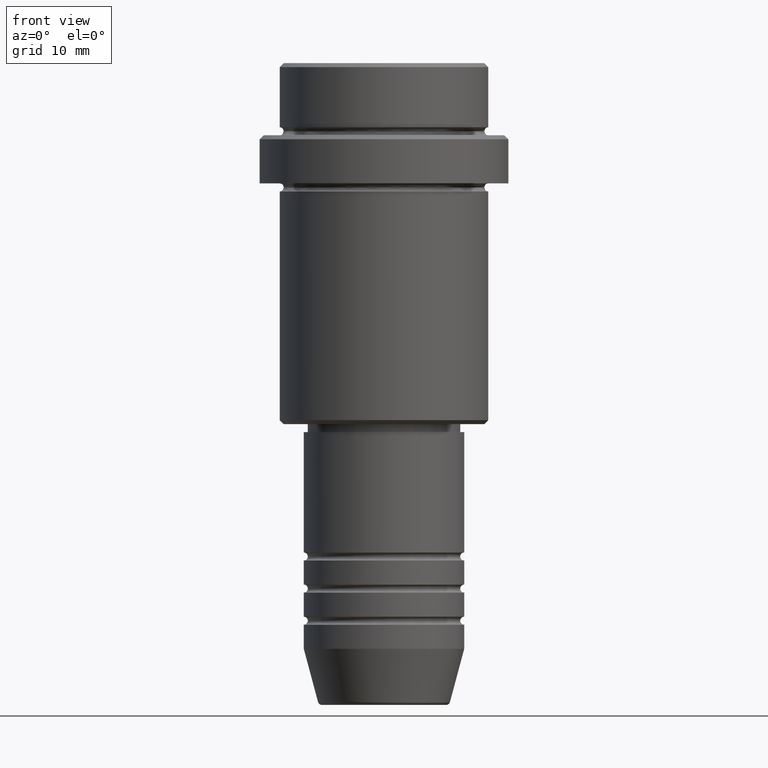
[diagram: clean part render]
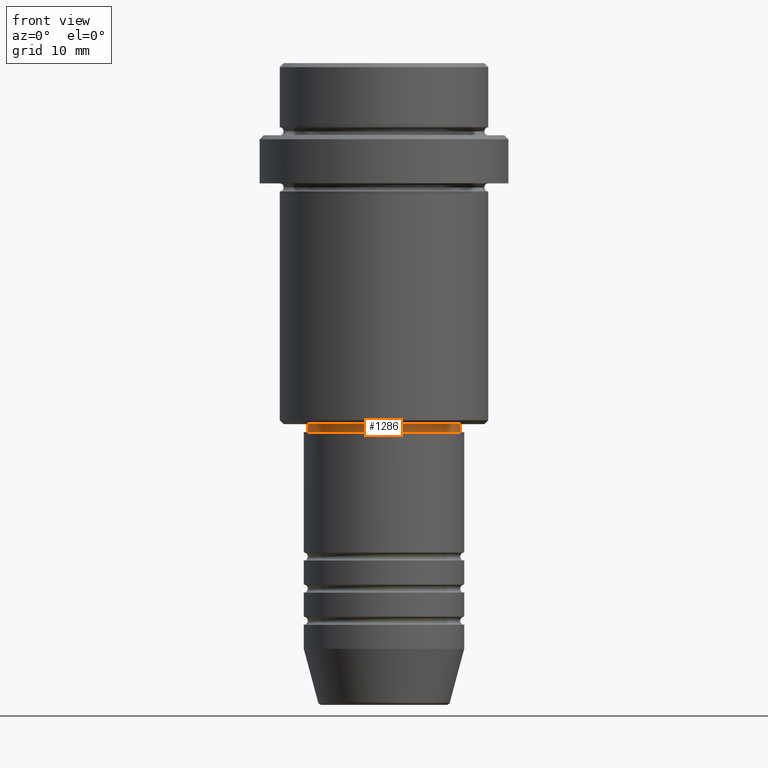
[diagram: same view with one face highlighted and labeled with its STEP entity id]
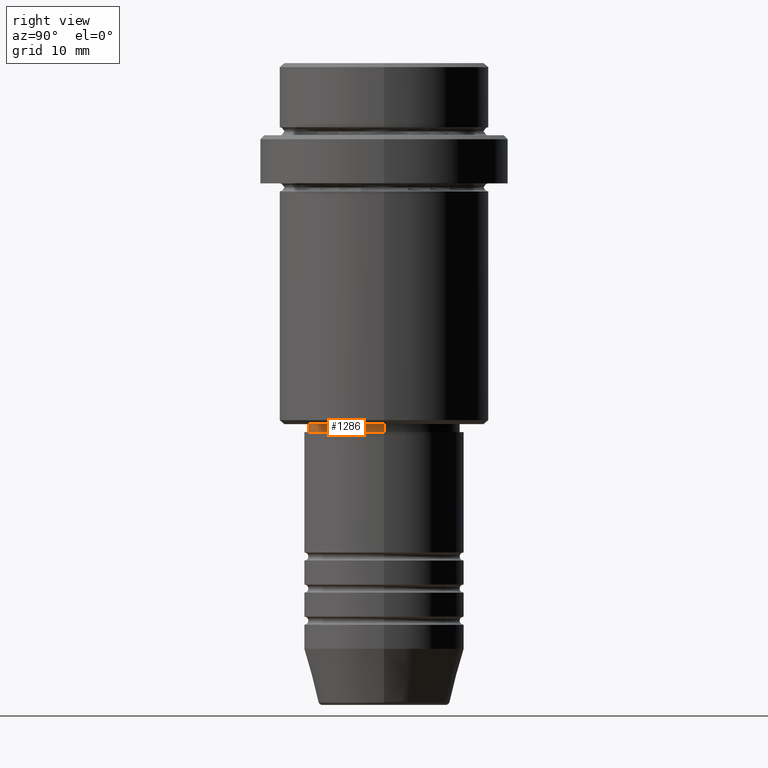
[diagram: same view with one face highlighted and labeled with its STEP entity id]
A machine part, front view. The second image highlights one B-rep face of the part: STEP entity #1286.
A second angle (right view) of the same face is appended — the face is thin or edge-on in the first view.
In plain terms, the highlighted cylindrical surface (partial cylindrical patch) has radius 9.5 mm, axis along (-0, -0, 1).
Its self-contained STEP definition (entity closure, byte-faithful):
#9 = VECTOR ( 'NONE', #1135, 1000.000000000000000 ) ;
#57 = CARTESIAN_POINT ( 'NONE',  ( -9.499999999999998224, 1.163414459189985288E-15, -46.00000000000000000 ) ) ;
#124 = ORIENTED_EDGE ( 'NONE', *, *, #136, .F. ) ;
#136 = EDGE_CURVE ( 'NONE', #1361, #580, #167, .T. ) ;
#164 = VERTEX_POINT ( 'NONE', #57 ) ;
#167 = CIRCLE ( 'NONE', #216, 9.499999999999996447 ) ;
#216 = AXIS2_PLACEMENT_3D ( 'NONE', #234, #468, #1334 ) ;
#234 = CARTESIAN_POINT ( 'NONE',  ( 0.000000000000000000, 0.000000000000000000, -45.00000000000000000 ) ) ;
#261 = DIRECTION ( 'NONE',  ( -0.000000000000000000, -0.000000000000000000, 1.000000000000000000 ) ) ;
#270 = CARTESIAN_POINT ( 'NONE',  ( 9.499999999999996447, 0.000000000000000000, -45.00000000000000000 ) ) ;
#347 = EDGE_CURVE ( 'NONE', #526, #580, #781, .T. ) ;
#370 = CARTESIAN_POINT ( 'NONE',  ( 0.000000000000000000, 0.000000000000000000, 0.000000000000000000 ) ) ;
#390 = ORIENTED_EDGE ( 'NONE', *, *, #790, .F. ) ;
#392 = CARTESIAN_POINT ( 'NONE',  ( -9.499999999999996447, 1.163414459189985091E-15, -45.00000000000000000 ) ) ;
#460 = AXIS2_PLACEMENT_3D ( 'NONE', #370, #261, #1153 ) ;
#468 = DIRECTION ( 'NONE',  ( -0.000000000000000000, -0.000000000000000000, 1.000000000000000000 ) ) ;
#526 = VERTEX_POINT ( 'NONE', #1041 ) ;
#580 = VERTEX_POINT ( 'NONE', #270 ) ;
#596 = DIRECTION ( 'NONE',  ( -0.000000000000000000, -0.000000000000000000, 1.000000000000000000 ) ) ;
#615 = ORIENTED_EDGE ( 'NONE', *, *, #347, .T. ) ;
#649 = VECTOR ( 'NONE', #1032, 1000.000000000000000 ) ;
#689 = CARTESIAN_POINT ( 'NONE',  ( 9.499999999999998224, 0.000000000000000000, 0.000000000000000000 ) ) ;
#706 = LINE ( 'NONE', #1359, #9 ) ;
#734 = ORIENTED_EDGE ( 'NONE', *, *, #1208, .T. ) ;
#781 = LINE ( 'NONE', #689, #649 ) ;
#790 = EDGE_CURVE ( 'NONE', #164, #1361, #706, .T. ) ;
#927 = FACE_OUTER_BOUND ( 'NONE', #1339, .T. ) ;
#966 = AXIS2_PLACEMENT_3D ( 'NONE', #1126, #596, #1340 ) ;
#1032 = DIRECTION ( 'NONE',  ( -0.000000000000000000, -0.000000000000000000, 1.000000000000000000 ) ) ;
#1041 = CARTESIAN_POINT ( 'NONE',  ( 9.499999999999998224, 0.000000000000000000, -46.00000000000000000 ) ) ;
#1126 = CARTESIAN_POINT ( 'NONE',  ( 0.000000000000000000, 0.000000000000000000, -46.00000000000000000 ) ) ;
#1135 = DIRECTION ( 'NONE',  ( -0.000000000000000000, -0.000000000000000000, 1.000000000000000000 ) ) ;
#1153 = DIRECTION ( 'NONE',  ( 1.000000000000000000, 0.000000000000000000, 0.000000000000000000 ) ) ;
#1208 = EDGE_CURVE ( 'NONE', #164, #526, #1299, .T. ) ;
#1286 = ADVANCED_FACE ( 'NONE', ( #927 ), #1358, .T. ) ;
#1299 = CIRCLE ( 'NONE', #966, 9.499999999999998224 ) ;
#1334 = DIRECTION ( 'NONE',  ( 1.000000000000000000, 0.000000000000000000, 0.000000000000000000 ) ) ;
#1339 = EDGE_LOOP ( 'NONE', ( #390, #734, #615, #124 ) ) ;
#1340 = DIRECTION ( 'NONE',  ( 1.000000000000000000, 0.000000000000000000, 0.000000000000000000 ) ) ;
#1358 = CYLINDRICAL_SURFACE ( 'NONE', #460, 9.499999999999998224 ) ;
#1359 = CARTESIAN_POINT ( 'NONE',  ( -9.499999999999998224, 1.163414459189985288E-15, 0.000000000000000000 ) ) ;
#1361 = VERTEX_POINT ( 'NONE', #392 ) ;